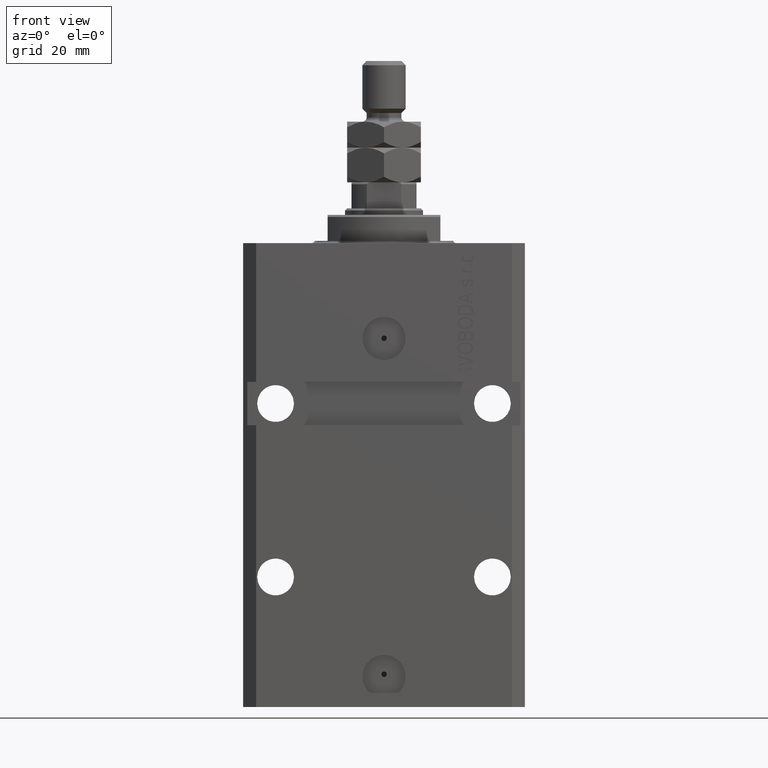
[diagram: clean part render]
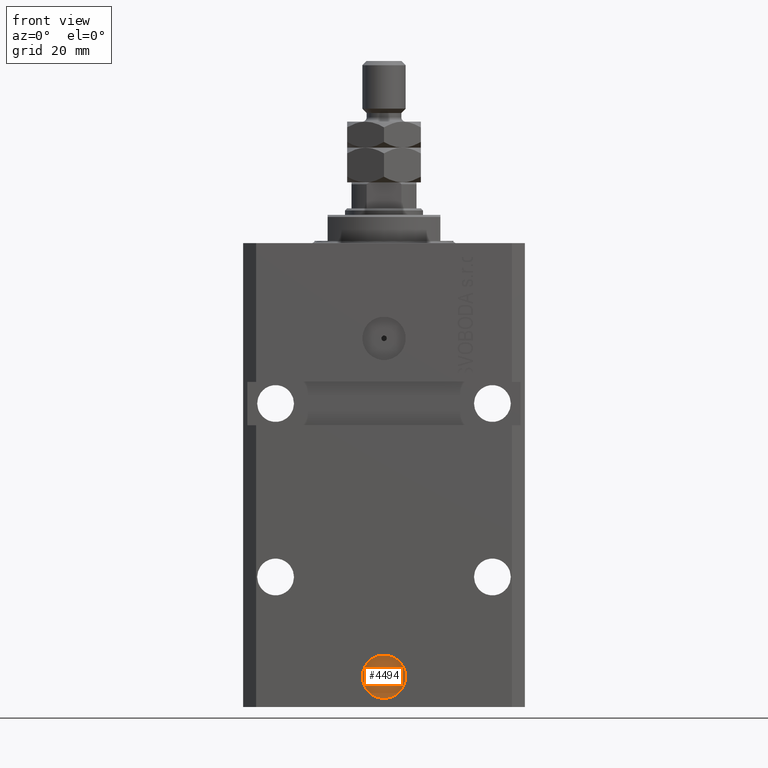
[diagram: same view with one face highlighted and labeled with its STEP entity id]
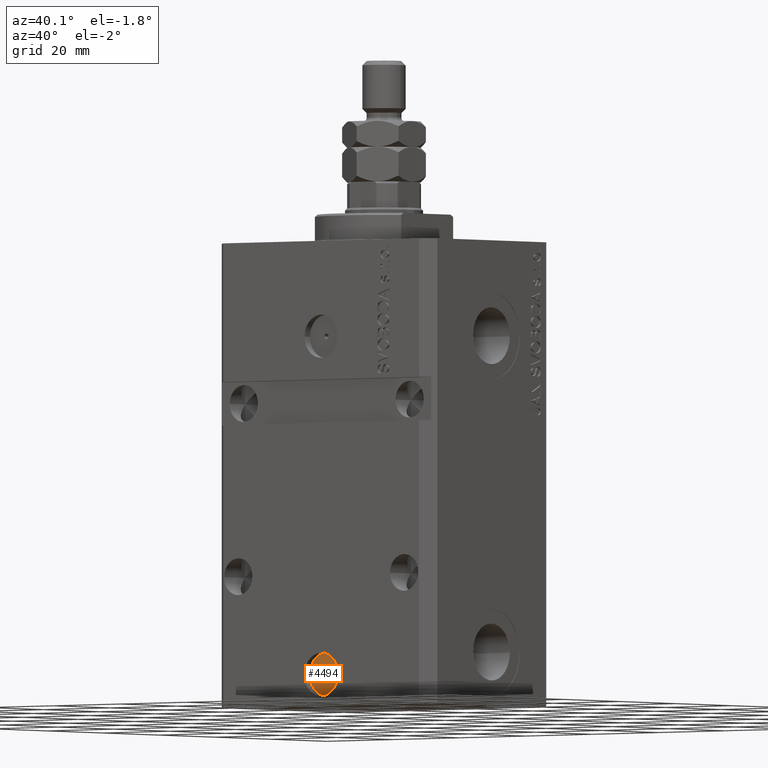
[diagram: same view with one face highlighted and labeled with its STEP entity id]
A machine part, front view. The second image highlights one B-rep face of the part: STEP entity #4494.
A second angle (auxiliary view) of the same face is appended — the face is thin or edge-on in the first view.
In plain terms, the highlighted planar face has unit normal (0, -1, 0).
Its self-contained STEP definition (entity closure, byte-faithful):
#2183 = DIRECTION ( 'NONE',  ( 1.176083712526788232E-16, -1.000000000000000000, 0.000000000000000000 ) ) ;
#2829 = EDGE_CURVE ( 'NONE', #37672, #27126, #22786, .T. ) ;
#3159 = ORIENTED_EDGE ( 'NONE', *, *, #7728, .T. ) ;
#4494 = ADVANCED_FACE ( 'NONE', ( #42500, #20158 ), #20859, .T. ) ;
#4864 = EDGE_LOOP ( 'NONE', ( #9417, #3159 ) ) ;
#5410 = CARTESIAN_POINT ( 'NONE',  ( 2.422732447805124080E-15, -20.59999999999949694, -99.99999999999998579 ) ) ;
#6264 = DIRECTION ( 'NONE',  ( 1.176083712526788232E-16, -1.000000000000000000, 0.000000000000000000 ) ) ;
#7728 = EDGE_CURVE ( 'NONE', #43421, #9484, #14331, .T. ) ;
#9417 = ORIENTED_EDGE ( 'NONE', *, *, #39673, .T. ) ;
#9484 = VERTEX_POINT ( 'NONE', #12477 ) ;
#11840 = EDGE_CURVE ( 'NONE', #27126, #37672, #35695, .T. ) ;
#12156 = EDGE_LOOP ( 'NONE', ( #22798, #13382 ) ) ;
#12477 = CARTESIAN_POINT ( 'NONE',  ( 5.000000000000008882, -20.59999999999949694, -99.99999999999998579 ) ) ;
#13382 = ORIENTED_EDGE ( 'NONE', *, *, #11840, .F. ) ;
#13696 = AXIS2_PLACEMENT_3D ( 'NONE', #5410, #45843, #34438 ) ;
#14331 = CIRCLE ( 'NONE', #37103, 5.000000000000006217 ) ;
#15170 = AXIS2_PLACEMENT_3D ( 'NONE', #15850, #44391, #16091 ) ;
#15850 = CARTESIAN_POINT ( 'NONE',  ( 2.422732447805124475E-15, -20.59999999999949694, -99.47499999999999432 ) ) ;
#16091 = DIRECTION ( 'NONE',  ( 1.000000000000000000, 0.000000000000000000, 0.000000000000000000 ) ) ;
#16717 = DIRECTION ( 'NONE',  ( 1.000000000000000000, 0.000000000000000000, 0.000000000000000000 ) ) ;
#20158 = FACE_OUTER_BOUND ( 'NONE', #4864, .T. ) ;
#20361 = CIRCLE ( 'NONE', #43892, 5.000000000000006217 ) ;
#20859 = PLANE ( 'NONE',  #13696 ) ;
#22786 = CIRCLE ( 'NONE', #34934, 0.6250000000000036637 ) ;
#22798 = ORIENTED_EDGE ( 'NONE', *, *, #2829, .F. ) ;
#23830 = CARTESIAN_POINT ( 'NONE',  ( 2.422732447805124080E-15, -20.59999999999949694, -99.99999999999998579 ) ) ;
#27107 = DIRECTION ( 'NONE',  ( 1.000000000000000000, 0.000000000000000000, 0.000000000000000000 ) ) ;
#27126 = VERTEX_POINT ( 'NONE', #38222 ) ;
#27918 = CARTESIAN_POINT ( 'NONE',  ( 2.422732447805124475E-15, -20.59999999999949694, -99.47499999999999432 ) ) ;
#28008 = CARTESIAN_POINT ( 'NONE',  ( 0.6250000000000061062, -20.59999999999949694, -99.47499999999999432 ) ) ;
#30205 = DIRECTION ( 'NONE',  ( 1.176083712526788232E-16, -1.000000000000000000, 0.000000000000000000 ) ) ;
#34438 = DIRECTION ( 'NONE',  ( 1.000000000000000000, 1.176083712526788232E-16, 0.000000000000000000 ) ) ;
#34934 = AXIS2_PLACEMENT_3D ( 'NONE', #27918, #6264, #35298 ) ;
#35298 = DIRECTION ( 'NONE',  ( 1.000000000000000000, 0.000000000000000000, 0.000000000000000000 ) ) ;
#35695 = CIRCLE ( 'NONE', #15170, 0.6250000000000036637 ) ;
#37103 = AXIS2_PLACEMENT_3D ( 'NONE', #37342, #30205, #27107 ) ;
#37342 = CARTESIAN_POINT ( 'NONE',  ( 2.422732447805124080E-15, -20.59999999999949694, -99.99999999999998579 ) ) ;
#37672 = VERTEX_POINT ( 'NONE', #28008 ) ;
#38222 = CARTESIAN_POINT ( 'NONE',  ( -0.6250000000000013323, -20.59999999999949694, -99.47499999999999432 ) ) ;
#39673 = EDGE_CURVE ( 'NONE', #9484, #43421, #20361, .T. ) ;
#41248 = CARTESIAN_POINT ( 'NONE',  ( -5.000000000000003553, -20.59999999999949694, -99.99999999999998579 ) ) ;
#42500 = FACE_BOUND ( 'NONE', #12156, .T. ) ;
#43421 = VERTEX_POINT ( 'NONE', #41248 ) ;
#43892 = AXIS2_PLACEMENT_3D ( 'NONE', #23830, #2183, #16717 ) ;
#44391 = DIRECTION ( 'NONE',  ( 1.176083712526788232E-16, -1.000000000000000000, 0.000000000000000000 ) ) ;
#45843 = DIRECTION ( 'NONE',  ( 1.176083712526788232E-16, -1.000000000000000000, 0.000000000000000000 ) ) ;